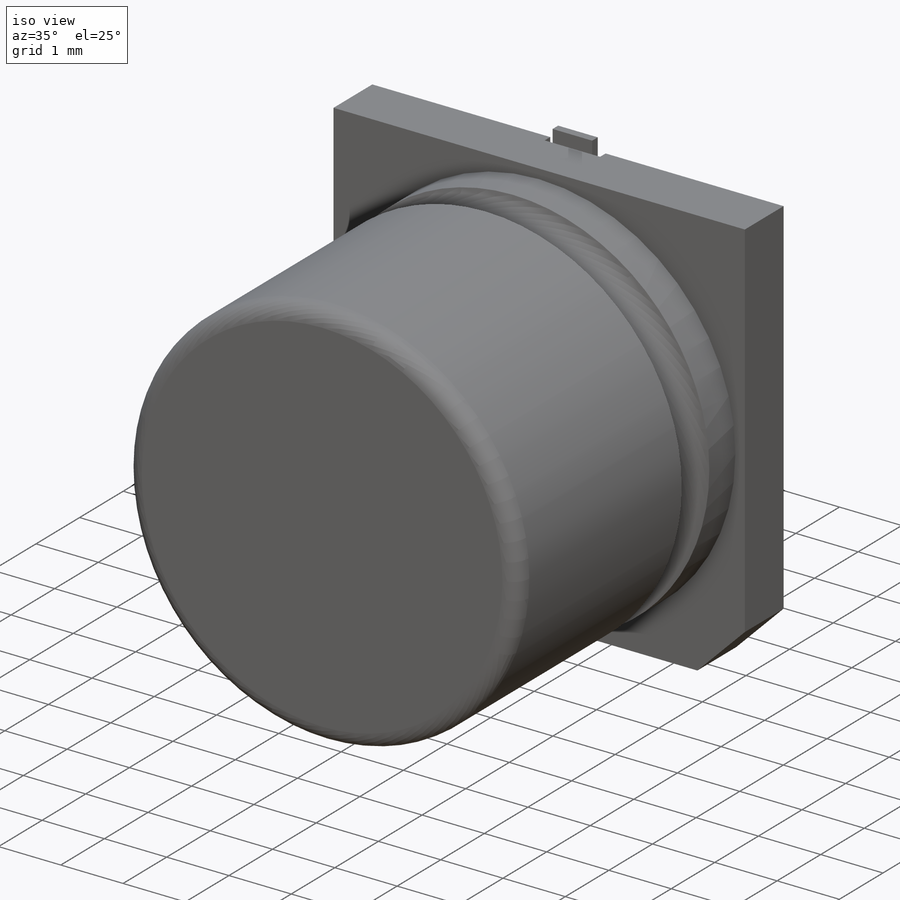
[diagram: iso view]
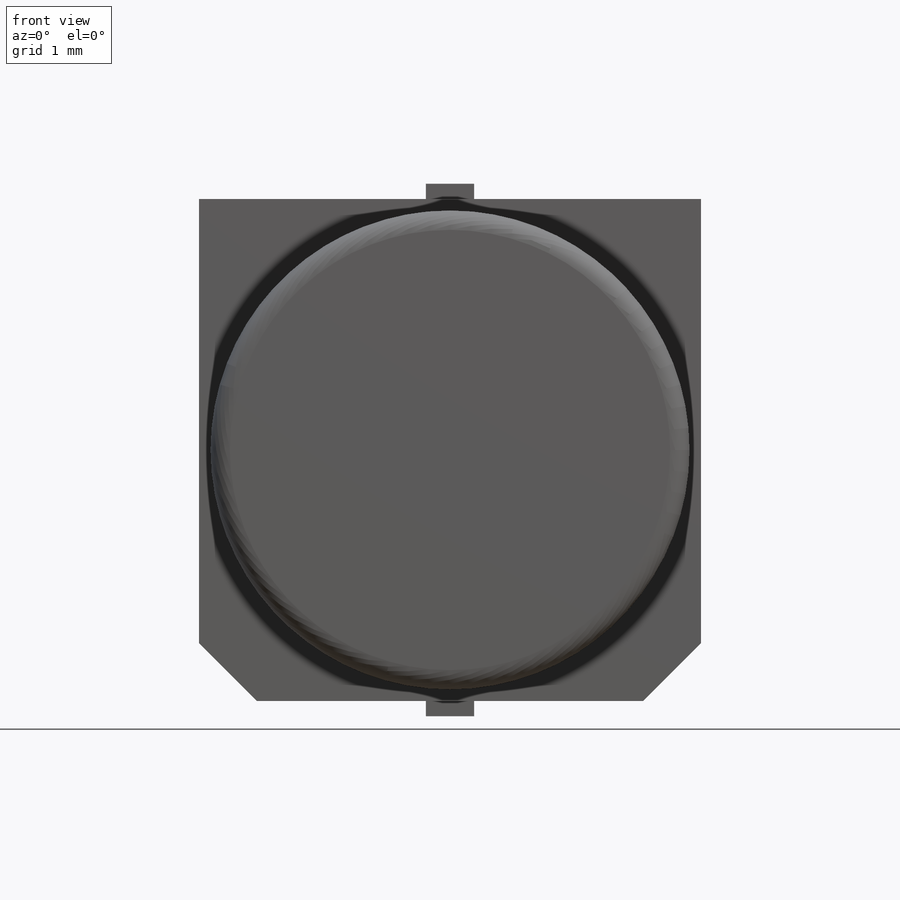
[diagram: front view]
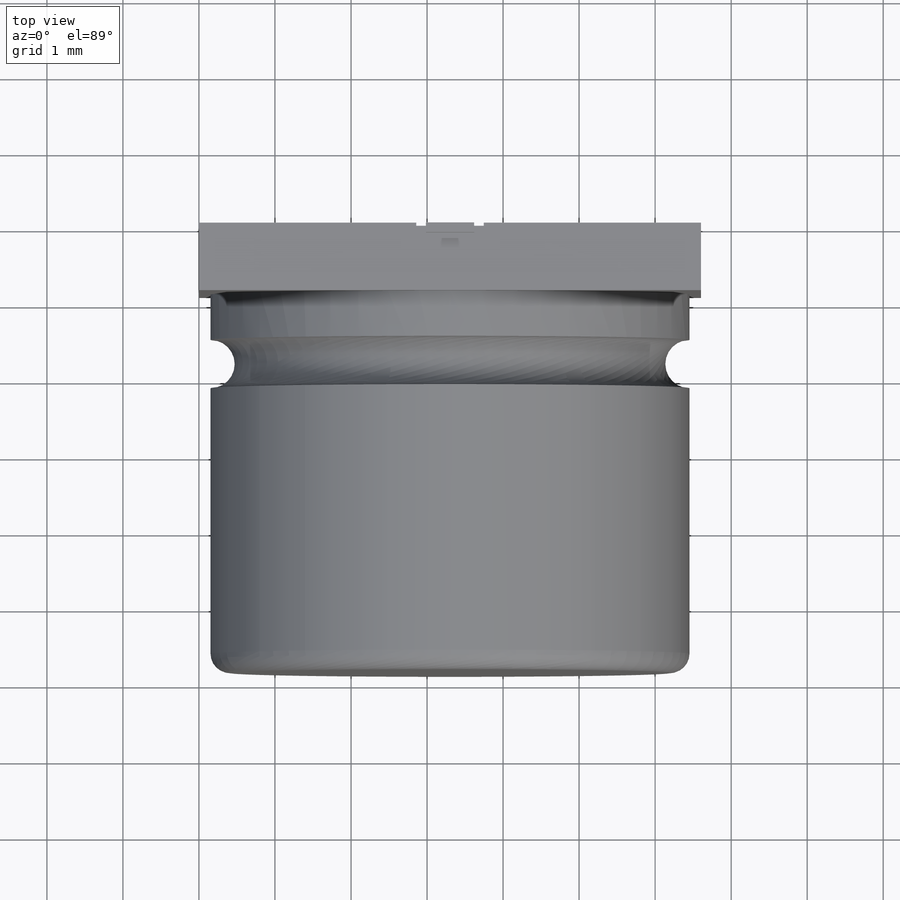
[diagram: top view]
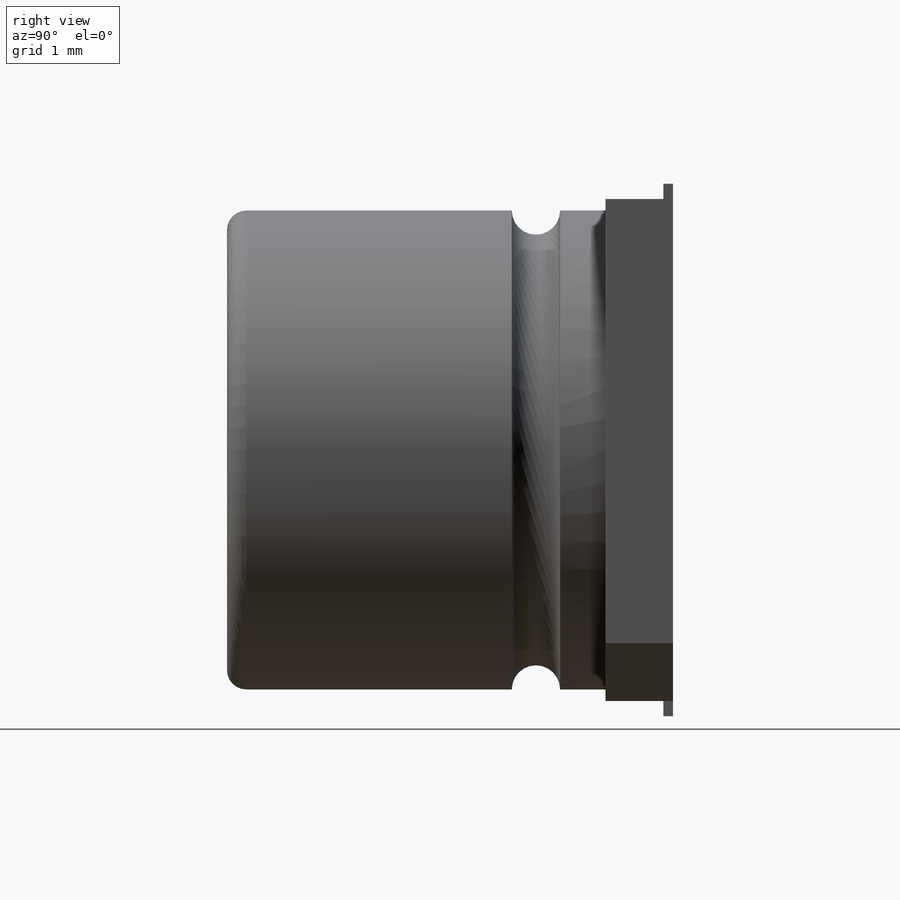
[diagram: right view]
SOLIDWORKS PART (.sldprt)
format: sldprt  version: not decoded by parser v0  size: 338,432 bytes
history: native  units: mm
features: sketch x10, sheet_metal_op x3, plane x2, mirror x2, material x1, extrude x1, revolve x1, fillet x1, chamfer x1, cut_extrude x1 + 2 further entries (+13 scaffold rows collapsed; 2 parser-record rows omitted)
feature tree (40):
  scaffold x13  (default folders/planes/origin — collapsed)
  material  "Material <not specified>"
  sketch  "Sketch1"  dims[D1=6.604mm D2=6.604mm]
  extrude  "Boss-Extrude1"  Depth=0.889mm
  plane  "Plane1"
  plane  "Plane2"
  sketch  "Sketch2"  dims[D3=0.3175mm D1=3.1496mm D2=4.9784mm D4=4.064mm]
  revolve  "Revolve1"  Angle=360deg
  fillet  "Fillet1"  Radius=0.254mm
  chamfer  "Chamfer1"  Distance=0.762mm
  sketch  "Sketch4"  dims[D1=0.889mm D2=2.4003mm]
  cut_extrude  "Cut-Extrude1"  Depth=0.127mm
  sketch  "Sketch5"  dims[c1.D1=2.5908mm c1.D2=0.0mm c2.D1=0.7366mm c2.D2=0.5 c2.D3=0.0deg c2.D6=~28.64789deg]
  sheet_metal_op  "Base-Flange1"
  mirror  "Mirror1"
  sketch  "Bend-Lines1"
  sketch  "Bounding-Box1"
  sheet_metal_op  "Sheet-Metal4"
  "Flat-Pattern4"
  sketch  "Bend-Lines2"
  sketch  "Bounding-Box2"
  parser-record x2  (decoder bookkeeping rows leaked as tree rows — omitted from the tree; the rows remain in map.json)
  mirror  "Sheet-Metal5"
  sheet_metal_op  "Flat-Pattern5"
  sketch  "Bend-Lines3"
  sketch  "Bounding-Box3"
  "Flatten-<DerivedBend1>1"
decode coverage: 9 of 20 modeling features carry decoded parameters; 2 rows unclassified (native names shown)
note: ~ marks probable driven/reference dimensions
note: suppression state not decoded; provenance and decode notes live in map.json
